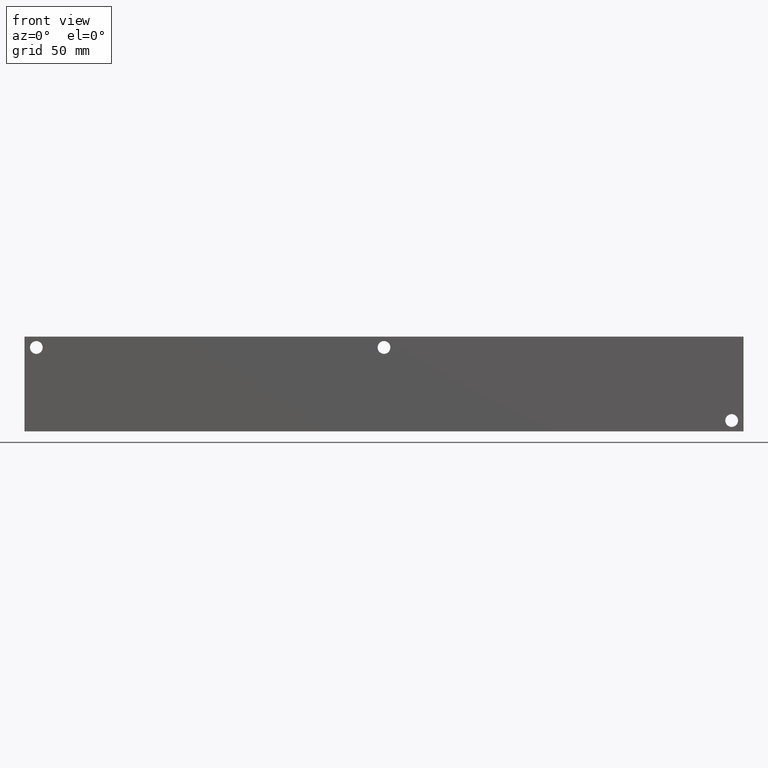
[diagram: clean part render]
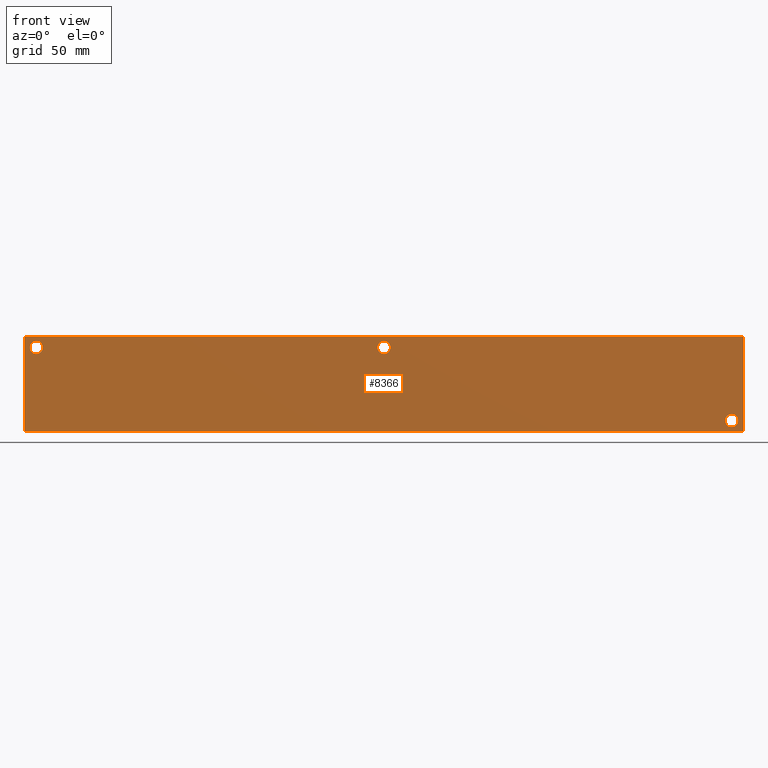
[diagram: same view with one face highlighted and labeled with its STEP entity id]
A machine part, front view. The second image highlights one B-rep face of the part: STEP entity #8366.
In plain terms, the highlighted planar face has unit normal (0, -1, 0).
Its self-contained STEP definition (entity closure, byte-faithful):
#149=CIRCLE('',#8601,5.1562);
#150=CIRCLE('',#8602,5.1562);
#152=CIRCLE('',#8610,5.1562);
#153=CIRCLE('',#8611,5.1562);
#155=CIRCLE('',#8619,5.1562);
#156=CIRCLE('',#8620,5.1562);
#364=FACE_BOUND('',#1651,.T.);
#365=FACE_BOUND('',#1652,.T.);
#366=FACE_BOUND('',#1653,.T.);
#1160=FACE_OUTER_BOUND('',#1650,.T.);
#1650=EDGE_LOOP('',(#7393,#7394,#7395,#7396));
#1651=EDGE_LOOP('',(#7397,#7398));
#1652=EDGE_LOOP('',(#7399,#7400));
#1653=EDGE_LOOP('',(#7401,#7402));
#1906=LINE('',#12904,#2636);
#2382=LINE('',#14711,#3112);
#2387=LINE('',#14720,#3117);
#2388=LINE('',#14722,#3118);
#2636=VECTOR('',#9260,10.);
#3112=VECTOR('',#10628,10.);
#3117=VECTOR('',#10637,10.);
#3118=VECTOR('',#10640,10.);
#3421=VERTEX_POINT('',#12902);
#3422=VERTEX_POINT('',#12903);
#3705=VERTEX_POINT('',#13854);
#3706=VERTEX_POINT('',#13855);
#3710=VERTEX_POINT('',#13870);
#3711=VERTEX_POINT('',#13871);
#3715=VERTEX_POINT('',#13886);
#3716=VERTEX_POINT('',#13887);
#3897=VERTEX_POINT('',#14709);
#3899=VERTEX_POINT('',#14718);
#4353=EDGE_CURVE('',#3421,#3422,#1906,.T.);
#4768=EDGE_CURVE('',#3705,#3706,#149,.T.);
#4769=EDGE_CURVE('',#3706,#3705,#150,.T.);
#4777=EDGE_CURVE('',#3710,#3711,#152,.T.);
#4778=EDGE_CURVE('',#3711,#3710,#153,.T.);
#4786=EDGE_CURVE('',#3715,#3716,#155,.T.);
#4787=EDGE_CURVE('',#3716,#3715,#156,.T.);
#5064=EDGE_CURVE('',#3897,#3421,#2382,.T.);
#5069=EDGE_CURVE('',#3899,#3422,#2387,.T.);
#5070=EDGE_CURVE('',#3897,#3899,#2388,.T.);
#7393=ORIENTED_EDGE('',*,*,#5070,.T.);
#7394=ORIENTED_EDGE('',*,*,#5069,.T.);
#7395=ORIENTED_EDGE('',*,*,#4353,.F.);
#7396=ORIENTED_EDGE('',*,*,#5064,.F.);
#7397=ORIENTED_EDGE('',*,*,#4768,.T.);
#7398=ORIENTED_EDGE('',*,*,#4769,.T.);
#7399=ORIENTED_EDGE('',*,*,#4777,.T.);
#7400=ORIENTED_EDGE('',*,*,#4778,.T.);
#7401=ORIENTED_EDGE('',*,*,#4786,.T.);
#7402=ORIENTED_EDGE('',*,*,#4787,.T.);
#7631=PLANE('',#8890);
#8366=ADVANCED_FACE('',(#1160,#364,#365,#366),#7631,.T.);
#8601=AXIS2_PLACEMENT_3D('',#13856,#9959,#9960);
#8602=AXIS2_PLACEMENT_3D('',#13857,#9961,#9962);
#8610=AXIS2_PLACEMENT_3D('',#13872,#9979,#9980);
#8611=AXIS2_PLACEMENT_3D('',#13873,#9981,#9982);
#8619=AXIS2_PLACEMENT_3D('',#13888,#9999,#10000);
#8620=AXIS2_PLACEMENT_3D('',#13889,#10001,#10002);
#8890=AXIS2_PLACEMENT_3D('',#14721,#10638,#10639);
#9260=DIRECTION('',(1.,0.,0.));
#9959=DIRECTION('center_axis',(0.,1.,0.));
#9960=DIRECTION('ref_axis',(1.,0.,0.));
#9961=DIRECTION('center_axis',(0.,1.,0.));
#9962=DIRECTION('ref_axis',(1.,0.,0.));
#9979=DIRECTION('center_axis',(0.,1.,0.));
#9980=DIRECTION('ref_axis',(1.,0.,0.));
#9981=DIRECTION('center_axis',(0.,1.,0.));
#9982=DIRECTION('ref_axis',(1.,0.,0.));
#9999=DIRECTION('center_axis',(0.,1.,0.));
#10000=DIRECTION('ref_axis',(1.,0.,0.));
#10001=DIRECTION('center_axis',(0.,1.,0.));
#10002=DIRECTION('ref_axis',(1.,0.,0.));
#10628=DIRECTION('',(0.,0.,1.));
#10637=DIRECTION('',(0.,0.,1.));
#10638=DIRECTION('center_axis',(0.,-1.,0.));
#10639=DIRECTION('ref_axis',(1.,0.,0.));
#10640=DIRECTION('',(1.,0.,0.));
#12902=CARTESIAN_POINT('',(0.,0.,76.2));
#12903=CARTESIAN_POINT('',(577.85,0.,76.2));
#12904=CARTESIAN_POINT('',(0.,0.,76.2));
#13854=CARTESIAN_POINT('',(294.0812,0.,67.4624));
#13855=CARTESIAN_POINT('',(283.7688,0.,67.4624));
#13856=CARTESIAN_POINT('Origin',(288.925,0.,67.4624));
#13857=CARTESIAN_POINT('Origin',(288.925,0.,67.4624));
#13870=CARTESIAN_POINT('',(14.6812,0.,67.4624));
#13871=CARTESIAN_POINT('',(4.3688,0.,67.4624));
#13872=CARTESIAN_POINT('Origin',(9.525,0.,67.4624));
#13873=CARTESIAN_POINT('Origin',(9.525,0.,67.4624));
#13886=CARTESIAN_POINT('',(573.4812,0.,8.7376));
#13887=CARTESIAN_POINT('',(563.1688,0.,8.7376));
#13888=CARTESIAN_POINT('Origin',(568.325,0.,8.7376));
#13889=CARTESIAN_POINT('Origin',(568.325,0.,8.7376));
#14709=CARTESIAN_POINT('',(0.,0.,0.));
#14711=CARTESIAN_POINT('',(0.,0.,0.));
#14718=CARTESIAN_POINT('',(577.85,0.,0.));
#14720=CARTESIAN_POINT('',(577.85,0.,0.));
#14721=CARTESIAN_POINT('Origin',(0.,0.,0.));
#14722=CARTESIAN_POINT('',(0.,0.,0.));